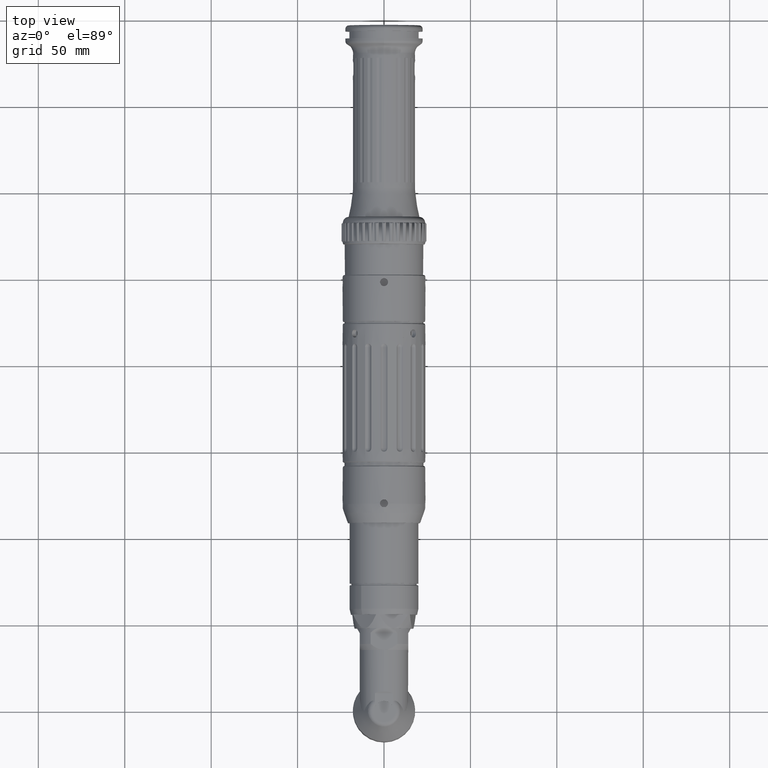
[diagram: clean part render]
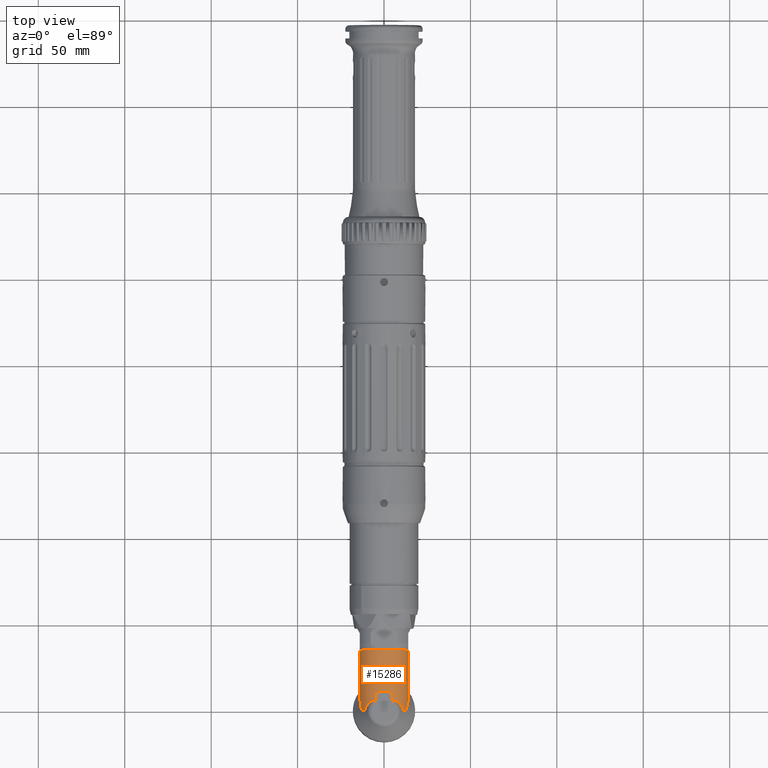
[diagram: same view with one face highlighted and labeled with its STEP entity id]
A machine part, top view. The second image highlights one B-rep face of the part: STEP entity #15286.
In plain terms, the highlighted cylindrical surface (bore or boss wall) has radius 14 mm, axis along (0, -1, 0).
Its self-contained STEP definition (entity closure, byte-faithful):
#117=ELLIPSE('',#16357,19.7989898732234,14.);
#400=B_SPLINE_CURVE_WITH_KNOTS('',3,(#24353,#24354,#24355,#24356,#24357,
#24358,#24359,#24360),.UNSPECIFIED.,.F.,.F.,(4,2,2,4),(0.996889077882617,
1.05251703469573,1.21449138699967,1.22417856193823),.UNSPECIFIED.);
#401=B_SPLINE_CURVE_WITH_KNOTS('',3,(#24364,#24365,#24366,#24367,#24368,
#24369),.UNSPECIFIED.,.F.,.F.,(4,2,4),(1.71924712445002,1.86126399063555,
2.07602834179498),.UNSPECIFIED.);
#402=B_SPLINE_CURVE_WITH_KNOTS('',3,(#24373,#24374,#24375,#24376,#24377,
#24378,#24379,#24380,#24381,#24382,#24383,#24384,#24385,#24386),
 .UNSPECIFIED.,.F.,.F.,(4,2,2,2,2,2,4),(3.40530504642907,3.50394886458541,
3.60259268274176,3.79988031905444,4.19445559167981,4.58903086430518,4.85221618798012),
 .UNSPECIFIED.);
#403=B_SPLINE_CURVE_WITH_KNOTS('',3,(#24390,#24391,#24392,#24393,#24394,
#24395,#24396,#24397,#24398,#24399),.UNSPECIFIED.,.F.,.F.,(4,2,2,2,4),(-0.705998900967671,
-0.444792625547526,-0.222396312773763,-0.111198156386882,0.),
 .UNSPECIFIED.);
#404=B_SPLINE_CURVE_WITH_KNOTS('',3,(#24403,#24404,#24405,#24406,#24407,
#24408,#24409,#24410,#24411,#24412),.UNSPECIFIED.,.F.,.F.,(4,2,2,2,4),(3.17390460403441,
3.28510276042129,3.39630091680817,3.61869722958194,3.87990350500208),
 .UNSPECIFIED.);
#405=B_SPLINE_CURVE_WITH_KNOTS('',3,(#24415,#24416,#24417,#24418,#24419,
#24420,#24421,#24422,#24423,#24424,#24425,#24426,#24427,#24428),
 .UNSPECIFIED.,.F.,.F.,(4,2,2,2,2,2,4),(1.95839390487804,2.22157922855296,
2.61615450117833,3.0107297738037,3.20801741011639,3.30666122827273,3.40530504642907),
 .UNSPECIFIED.);
#406=B_SPLINE_CURVE_WITH_KNOTS('',3,(#24431,#24432,#24433,#24434,#24435,
#24436,#24437,#24438,#24439,#24440,#24441,#24442,#24443,#24444,#24445,#24446),
 .UNSPECIFIED.,.F.,.F.,(4,2,2,2,2,2,2,4),(2.2217434660514,2.26915554022645,
2.35454252497188,2.42149488981413,2.48932579871356,2.58437917174115,2.72558526669357,
2.87905094980489),.UNSPECIFIED.);
#407=B_SPLINE_CURVE_WITH_KNOTS('',3,(#24449,#24450,#24451,#24452,#24453,
#24454,#24455,#24456,#24457,#24458,#24459,#24460,#24461,#24462,#24463,#24464),
 .UNSPECIFIED.,.F.,.F.,(4,2,2,2,2,2,2,4),(0.578152838762708,0.726975692022308,
0.879643700216198,0.976465362497118,1.04452032220142,1.10812630067811,1.18776566566929,
1.21275660730421),.UNSPECIFIED.);
#408=B_SPLINE_CURVE_WITH_KNOTS('',3,(#24529,#24530,#24531,#24532,#24533,
#24534,#24535,#24536,#24537,#24538,#24539,#24540,#24541,#24542,#24543,#24544,
#24545,#24546,#24547,#24548,#24549,#24550),.UNSPECIFIED.,.F.,.F.,(4,2,2,
2,2,2,2,2,2,2,4),(4.93128839962065,5.06425895778514,5.63356161291278,6.18799803344951,
6.46521624371787,6.74243445398623,7.0196526642546,7.29687087452296,7.85130729505968,
8.42060995018733,8.55358050835181),.UNSPECIFIED.);
#1057=FACE_BOUND('',#4183,.T.);
#1494=LINE('',#24467,#2361);
#1495=LINE('',#24469,#2362);
#2361=VECTOR('',#18747,10.);
#2362=VECTOR('',#18748,10.);
#3189=FACE_OUTER_BOUND('',#4182,.T.);
#4182=EDGE_LOOP('',(#10389,#10390,#10391,#10392));
#4183=EDGE_LOOP('',(#10393,#10394,#10395,#10396,#10397,#10398,#10399,#10400,
#10401,#10402,#10403,#10404,#10405,#10406));
#5319=CIRCLE('',#16344,14.);
#5320=CIRCLE('',#16346,14.);
#5321=CIRCLE('',#16354,14.);
#5322=CIRCLE('',#16359,14.);
#5323=CIRCLE('',#16360,14.);
#5324=CIRCLE('',#16361,14.);
#6435=VERTEX_POINT('',#24351);
#6436=VERTEX_POINT('',#24352);
#6437=VERTEX_POINT('',#24361);
#6438=VERTEX_POINT('',#24363);
#6439=VERTEX_POINT('',#24372);
#6440=VERTEX_POINT('',#24387);
#6441=VERTEX_POINT('',#24389);
#6442=VERTEX_POINT('',#24400);
#6443=VERTEX_POINT('',#24402);
#6444=VERTEX_POINT('',#24413);
#6445=VERTEX_POINT('',#24430);
#6446=VERTEX_POINT('',#24447);
#6447=VERTEX_POINT('',#24466);
#6448=VERTEX_POINT('',#24468);
#6450=VERTEX_POINT('',#24477);
#6451=VERTEX_POINT('',#24485);
#6452=VERTEX_POINT('',#24496);
#6453=VERTEX_POINT('',#24502);
#7942=EDGE_CURVE('',#6435,#6436,#400,.F.);
#7944=EDGE_CURVE('',#6437,#6438,#401,.F.);
#7946=EDGE_CURVE('',#6439,#6436,#402,.T.);
#7948=EDGE_CURVE('',#6441,#6440,#403,.T.);
#7950=EDGE_CURVE('',#6443,#6442,#404,.T.);
#7952=EDGE_CURVE('',#6437,#6444,#405,.T.);
#7953=EDGE_CURVE('',#6441,#6445,#406,.F.);
#7955=EDGE_CURVE('',#6446,#6442,#407,.F.);
#7956=EDGE_CURVE('',#6446,#6447,#1494,.T.);
#7957=EDGE_CURVE('',#6448,#6445,#1495,.T.);
#7969=EDGE_CURVE('',#6450,#6452,#5319,.T.);
#7971=EDGE_CURVE('',#6451,#6453,#5320,.T.);
#7978=EDGE_CURVE('',#6452,#6451,#5321,.T.);
#7979=EDGE_CURVE('',#6447,#6448,#117,.T.);
#7980=EDGE_CURVE('',#6453,#6450,#5322,.T.);
#7981=EDGE_CURVE('',#6439,#6440,#5323,.T.);
#7982=EDGE_CURVE('',#6435,#6438,#408,.T.);
#7983=EDGE_CURVE('',#6443,#6444,#5324,.T.);
#10389=ORIENTED_EDGE('',*,*,#7978,.T.);
#10390=ORIENTED_EDGE('',*,*,#7971,.T.);
#10391=ORIENTED_EDGE('',*,*,#7980,.T.);
#10392=ORIENTED_EDGE('',*,*,#7969,.T.);
#10393=ORIENTED_EDGE('',*,*,#7956,.T.);
#10394=ORIENTED_EDGE('',*,*,#7979,.T.);
#10395=ORIENTED_EDGE('',*,*,#7957,.T.);
#10396=ORIENTED_EDGE('',*,*,#7953,.F.);
#10397=ORIENTED_EDGE('',*,*,#7948,.T.);
#10398=ORIENTED_EDGE('',*,*,#7981,.F.);
#10399=ORIENTED_EDGE('',*,*,#7946,.T.);
#10400=ORIENTED_EDGE('',*,*,#7942,.F.);
#10401=ORIENTED_EDGE('',*,*,#7982,.T.);
#10402=ORIENTED_EDGE('',*,*,#7944,.F.);
#10403=ORIENTED_EDGE('',*,*,#7952,.T.);
#10404=ORIENTED_EDGE('',*,*,#7983,.F.);
#10405=ORIENTED_EDGE('',*,*,#7950,.T.);
#10406=ORIENTED_EDGE('',*,*,#7955,.F.);
#13943=CYLINDRICAL_SURFACE('',#16358,14.);
#15286=ADVANCED_FACE('',(#3189,#1057),#13943,.T.);
#16344=AXIS2_PLACEMENT_3D('',#24500,#18768,#18769);
#16346=AXIS2_PLACEMENT_3D('',#24506,#18772,#18773);
#16354=AXIS2_PLACEMENT_3D('',#24522,#18790,#18791);
#16357=AXIS2_PLACEMENT_3D('',#24525,#18796,#18797);
#16358=AXIS2_PLACEMENT_3D('',#24526,#18798,#18799);
#16359=AXIS2_PLACEMENT_3D('',#24527,#18800,#18801);
#16360=AXIS2_PLACEMENT_3D('',#24528,#18802,#18803);
#16361=AXIS2_PLACEMENT_3D('',#24551,#18804,#18805);
#18747=DIRECTION('',(-8.23378977134237E-16,1.,-8.72626708289615E-15));
#18748=DIRECTION('',(8.23378977134237E-16,-1.,8.72626708289615E-15));
#18768=DIRECTION('center_axis',(8.23378977134237E-16,-1.,8.72626708289615E-15));
#18769=DIRECTION('ref_axis',(-1.16743491188149E-16,8.72626708289615E-15,
1.));
#18772=DIRECTION('center_axis',(8.23378977134237E-16,-1.,8.72626708289615E-15));
#18773=DIRECTION('ref_axis',(-1.16743491188149E-16,8.72626708289615E-15,
1.));
#18790=DIRECTION('center_axis',(8.23378977134237E-16,-1.,8.72626708289615E-15));
#18791=DIRECTION('ref_axis',(-1.16743491188149E-16,8.72626708289615E-15,
1.));
#18796=DIRECTION('center_axis',(-4.99666743939529E-16,0.707106781186541,
-0.707106781186555));
#18797=DIRECTION('ref_axis',(-6.64766972496595E-16,0.707106781186554,0.707106781186541));
#18798=DIRECTION('center_axis',(8.23378977134237E-16,-1.,8.72626708289615E-15));
#18799=DIRECTION('ref_axis',(-1.16743491188149E-16,8.72626708289614E-15,
1.));
#18800=DIRECTION('center_axis',(8.23378977134237E-16,-1.,8.72626708289615E-15));
#18801=DIRECTION('ref_axis',(-1.16743491188149E-16,8.72626708289615E-15,
1.));
#18802=DIRECTION('center_axis',(8.23378977134237E-16,-1.,8.72626708289615E-15));
#18803=DIRECTION('ref_axis',(-1.16743491188149E-16,8.72626708289614E-15,
1.));
#18804=DIRECTION('center_axis',(8.23378977134237E-16,-1.,8.72626708289615E-15));
#18805=DIRECTION('ref_axis',(-1.16743491188149E-16,8.72626708289614E-15,
1.));
#24351=CARTESIAN_POINT('',(13.3366646313381,12.0885638729832,-4.25833024919532));
#24352=CARTESIAN_POINT('',(13.7255824734833,11.0136584341453,-2.75833024919308));
#24353=CARTESIAN_POINT('Ctrl Pts',(13.7255824734829,11.0136584341473,-2.75833024919065));
#24354=CARTESIAN_POINT('Ctrl Pts',(13.702797771956,11.1466460452976,-2.87170800735919));
#24355=CARTESIAN_POINT('Ctrl Pts',(13.6778719090338,11.2676775815647,-2.98842704909826));
#24356=CARTESIAN_POINT('Ctrl Pts',(13.5719761066393,11.696606998628,-3.45363411773));
#24357=CARTESIAN_POINT('Ctrl Pts',(13.4733110495007,11.9240598244514,-3.82348986776637));
#24358=CARTESIAN_POINT('Ctrl Pts',(13.3507409508213,12.0726545272339,-4.2140538296464));
#24359=CARTESIAN_POINT('Ctrl Pts',(13.3437430325756,12.0807546522666,-4.23616140415186));
#24360=CARTESIAN_POINT('Ctrl Pts',(13.3366646313376,12.0885638729838,-4.25833024919497));
#24361=CARTESIAN_POINT('',(-13.7255824734844,11.0136584341453,-2.75833024919309));
#24363=CARTESIAN_POINT('',(-13.3366646313393,12.0885638729832,-4.25833024919532));
#24364=CARTESIAN_POINT('Ctrl Pts',(-13.3366646313389,12.0885638729836,-4.25833024919446));
#24365=CARTESIAN_POINT('Ctrl Pts',(-13.4093995411693,12.0083193452138,-4.03053178298074));
#24366=CARTESIAN_POINT('Ctrl Pts',(-13.473161911542,11.8978450110758,-3.81053600306765));
#24367=CARTESIAN_POINT('Ctrl Pts',(-13.6122332941475,11.5596451845156,-3.28830258477332));
#24368=CARTESIAN_POINT('Ctrl Pts',(-13.6758282773905,11.3040590643843,-3.00590949467243));
#24369=CARTESIAN_POINT('Ctrl Pts',(-13.7255824734841,11.0136584341473,-2.75833024919067));
#24372=CARTESIAN_POINT('',(12.9873605377563,-5.32907051820075E-14,5.2276635567261));
#24373=CARTESIAN_POINT('Ctrl Pts',(12.9873605377563,-7.09154956979319E-14,
5.22766355672612));
#24374=CARTESIAN_POINT('Ctrl Pts',(12.9873605377563,0.328812727187753,5.22766355672612));
#24375=CARTESIAN_POINT('Ctrl Pts',(13.0149731918321,0.611384943635933,5.15949552771321));
#24376=CARTESIAN_POINT('Ctrl Pts',(13.087060029951,1.1387557790102,4.97380905121963));
#24377=CARTESIAN_POINT('Ctrl Pts',(13.1320440476462,1.38296120990077,4.85480759324498));
#24378=CARTESIAN_POINT('Ctrl Pts',(13.2739690470317,2.10169545294089,4.45873115142986));
#24379=CARTESIAN_POINT('Ctrl Pts',(13.3768283902347,2.55749382319674,4.14550432945748));
#24380=CARTESIAN_POINT('Ctrl Pts',(13.6648516191548,3.96173663875803,3.12582885194657));
#24381=CARTESIAN_POINT('Ctrl Pts',(13.8262356476904,4.92235219835807,2.34823549621331));
#24382=CARTESIAN_POINT('Ctrl Pts',(14.0062417895297,6.91560433181134,0.71006463728803));
#24383=CARTESIAN_POINT('Ctrl Pts',(14.0262380501167,7.9447906766346,-0.154835893213145));
#24384=CARTESIAN_POINT('Ctrl Pts',(13.9199998022949,9.65734875289009,-1.60356852657758));
#24385=CARTESIAN_POINT('Ctrl Pts',(13.8407266260185,10.3415958326058,-2.18536747128213));
#24386=CARTESIAN_POINT('Ctrl Pts',(13.7255824734829,11.0136584341475,-2.75833024919075));
#24387=CARTESIAN_POINT('',(11.0209697114403,-5.32907051820075E-14,8.63355237544274));
#24389=CARTESIAN_POINT('',(7.98435971133513,4.89616501604418,11.5000000000005));
#24390=CARTESIAN_POINT('Ctrl Pts',(7.98435971133514,4.8961650160442,11.5000000000005));
#24391=CARTESIAN_POINT('Ctrl Pts',(8.58109122359643,4.38062505155532,11.0856939960889));
#24392=CARTESIAN_POINT('Ctrl Pts',(9.1183380641205,3.81911233981466,10.6416979802054));
#24393=CARTESIAN_POINT('Ctrl Pts',(9.96174800663553,2.75159290856836,9.85120130894817));
#24394=CARTESIAN_POINT('Ctrl Pts',(10.2865087442615,2.26169048963497,9.50477021551351));
#24395=CARTESIAN_POINT('Ctrl Pts',(10.6726741160037,1.49356799530517,9.06269383630864));
#24396=CARTESIAN_POINT('Ctrl Pts',(10.7835015732708,1.23470723858199,8.92943600330219));
#24397=CARTESIAN_POINT('Ctrl Pts',(10.9560612316614,0.672009539808123,8.71684998142055));
#24398=CARTESIAN_POINT('Ctrl Pts',(11.0209697114403,0.370660521289548,8.6335523754427));
#24399=CARTESIAN_POINT('Ctrl Pts',(11.0209697114403,-5.32907051820075E-14,
8.63355237544271));
#24400=CARTESIAN_POINT('',(-7.98435971133624,4.8961650160442,11.5000000000005));
#24402=CARTESIAN_POINT('',(-11.0209697114414,-5.32907051820075E-14,8.63355237544273));
#24403=CARTESIAN_POINT('Ctrl Pts',(-11.0209697114414,-5.32907051820073E-14,
8.63355237544272));
#24404=CARTESIAN_POINT('Ctrl Pts',(-11.0209697114414,0.370660521289548,
8.63355237544272));
#24405=CARTESIAN_POINT('Ctrl Pts',(-10.9560612316625,0.67200953980814,8.71684998142053));
#24406=CARTESIAN_POINT('Ctrl Pts',(-10.783501573272,1.23470723858199,8.92943600330218));
#24407=CARTESIAN_POINT('Ctrl Pts',(-10.6726741160048,1.49356799530517,9.06269383630863));
#24408=CARTESIAN_POINT('Ctrl Pts',(-10.2865087442627,2.26169048963497,9.50477021551351));
#24409=CARTESIAN_POINT('Ctrl Pts',(-9.96174800663665,2.75159290856836,9.85120130894817));
#24410=CARTESIAN_POINT('Ctrl Pts',(-9.11833806412162,3.81911233981466,10.6416979802054));
#24411=CARTESIAN_POINT('Ctrl Pts',(-8.58109122359755,4.38062505155532,11.0856939960889));
#24412=CARTESIAN_POINT('Ctrl Pts',(-7.98435971133624,4.89616501604421,11.5000000000005));
#24413=CARTESIAN_POINT('',(-12.9873605377574,-7.105427357601E-14,5.2276635567261));
#24415=CARTESIAN_POINT('Ctrl Pts',(-13.7255824734841,11.0136584341473,-2.75833024919066));
#24416=CARTESIAN_POINT('Ctrl Pts',(-13.8407266260196,10.3415958326057,-2.18536747128209));
#24417=CARTESIAN_POINT('Ctrl Pts',(-13.919999802296,9.65734875289003,-1.60356852657755));
#24418=CARTESIAN_POINT('Ctrl Pts',(-14.0262380501179,7.94479067663458,-0.154835893213145));
#24419=CARTESIAN_POINT('Ctrl Pts',(-14.0062417895309,6.91560433181131,0.710064637288038));
#24420=CARTESIAN_POINT('Ctrl Pts',(-13.8262356476916,4.92235219835806,2.34823549621331));
#24421=CARTESIAN_POINT('Ctrl Pts',(-13.664851619156,3.96173663875802,3.12582885194656));
#24422=CARTESIAN_POINT('Ctrl Pts',(-13.3768283902358,2.55749382319671,4.14550432945747));
#24423=CARTESIAN_POINT('Ctrl Pts',(-13.2739690470329,2.10169545294086,4.45873115142985));
#24424=CARTESIAN_POINT('Ctrl Pts',(-13.1320440476473,1.38296120990077,4.85480759324497));
#24425=CARTESIAN_POINT('Ctrl Pts',(-13.0870600299522,1.13875577901018,4.97380905121961));
#24426=CARTESIAN_POINT('Ctrl Pts',(-13.0149731918333,0.611384943635915,
5.15949552771319));
#24427=CARTESIAN_POINT('Ctrl Pts',(-12.9873605377574,0.328812727187735,
5.22766355672611));
#24428=CARTESIAN_POINT('Ctrl Pts',(-12.9873605377574,-7.08808012284123E-14,
5.22766355672611));
#24430=CARTESIAN_POINT('',(5.19615242270609,4.33648893361079,13.0000000000005));
#24431=CARTESIAN_POINT('Ctrl Pts',(5.19615242270609,4.33648893361074,13.0000000000005));
#24432=CARTESIAN_POINT('Ctrl Pts',(5.19615242270609,4.43139953927028,13.0000000000005));
#24433=CARTESIAN_POINT('Ctrl Pts',(5.20077701635673,4.52230065771713,12.9981552615446));
#24434=CARTESIAN_POINT('Ctrl Pts',(5.22946534510295,4.76512784149859,12.9866503448982));
#24435=CARTESIAN_POINT('Ctrl Pts',(5.26746900273672,4.9188107182095,12.9714931483061));
#24436=CARTESIAN_POINT('Ctrl Pts',(5.39377026703898,5.1660888933988,12.9193981180506));
#24437=CARTESIAN_POINT('Ctrl Pts',(5.46626474314701,5.25931110976835,12.8891240031427));
#24438=CARTESIAN_POINT('Ctrl Pts',(5.6470078585045,5.41473664223417,12.8109766528634));
#24439=CARTESIAN_POINT('Ctrl Pts',(5.75054555660815,5.47200907172764,12.7650194913633));
#24440=CARTESIAN_POINT('Ctrl Pts',(6.01312654462958,5.56832029487667,12.6440016156245));
#24441=CARTESIAN_POINT('Ctrl Pts',(6.17717749435074,5.59077689749344,12.5648182261161));
#24442=CARTESIAN_POINT('Ctrl Pts',(6.5747528393285,5.59038102274371,12.3629947358524));
#24443=CARTESIAN_POINT('Ctrl Pts',(6.83700975575648,5.54025421226292,12.2210153467786));
#24444=CARTESIAN_POINT('Ctrl Pts',(7.39962953581847,5.3210361536436,11.8895391838035));
#24445=CARTESIAN_POINT('Ctrl Pts',(7.69856815583266,5.14307164883895,11.6984228331826));
#24446=CARTESIAN_POINT('Ctrl Pts',(7.98435971133512,4.89616501604419,11.5000000000005));
#24447=CARTESIAN_POINT('',(-5.19615242270722,4.33648893361079,13.0000000000005));
#24449=CARTESIAN_POINT('Ctrl Pts',(-7.98435971133615,4.89616501604426,11.5000000000006));
#24450=CARTESIAN_POINT('Ctrl Pts',(-7.70098610626876,5.14098268578641,11.6967440691793));
#24451=CARTESIAN_POINT('Ctrl Pts',(-7.40316424611944,5.31926992190775,11.8873657390774));
#24452=CARTESIAN_POINT('Ctrl Pts',(-6.80799176425742,5.55195606877897,12.2382041503384));
#24453=CARTESIAN_POINT('Ctrl Pts',(-6.51360982831856,5.60190652279106,12.3959126946678));
#24454=CARTESIAN_POINT('Ctrl Pts',(-6.08539027061572,5.57999246770462,12.6096201488373));
#24455=CARTESIAN_POINT('Ctrl Pts',(-5.91510884655462,5.54518521277803,12.6901723584083));
#24456=CARTESIAN_POINT('Ctrl Pts',(-5.65085614056697,5.41661578299379,12.8094553397007));
#24457=CARTESIAN_POINT('Ctrl Pts',(-5.5512655447698,5.34428184933864,12.8526928655067));
#24458=CARTESIAN_POINT('Ctrl Pts',(-5.38937137780146,5.15990397247004,12.921373539353));
#24459=CARTESIAN_POINT('Ctrl Pts',(-5.33026924243526,5.05672742939916,12.9456690204508));
#24460=CARTESIAN_POINT('Ctrl Pts',(-5.23433374807485,4.79762678346111,12.9848014369672));
#24461=CARTESIAN_POINT('Ctrl Pts',(-5.20932278304942,4.6412183933173,12.99473163858));
#24462=CARTESIAN_POINT('Ctrl Pts',(-5.19748273700482,4.43722495996085,12.9994685459136));
#24463=CARTESIAN_POINT('Ctrl Pts',(-5.19615242270722,4.38736772230278,13.0000000000005));
#24464=CARTESIAN_POINT('Ctrl Pts',(-5.19615242270722,4.33648893361078,13.0000000000005));
#24466=CARTESIAN_POINT('',(-5.19615242270723,9.99999999999998,13.0000000000005));
#24467=CARTESIAN_POINT('',(-5.19615242270724,17.5,13.0000000000004));
#24468=CARTESIAN_POINT('',(5.1961524227061,9.99999999999998,13.0000000000005));
#24469=CARTESIAN_POINT('',(5.19615242270609,17.5,13.0000000000004));
#24477=CARTESIAN_POINT('',(-5.85130223477191E-13,34.9999999999997,-13.9999999999998));
#24485=CARTESIAN_POINT('',(-5.86684535711653E-13,35.,14.0000000000003));
#24496=CARTESIAN_POINT('',(13.9999999999994,34.9999999999999,2.47132937121499E-13));
#24500=CARTESIAN_POINT('Origin',(-5.85907379594422E-13,34.9999999999999,
2.45498528244865E-13));
#24502=CARTESIAN_POINT('',(-14.0000000000006,34.9999999999999,2.43864119368231E-13));
#24506=CARTESIAN_POINT('Origin',(-5.85907379594422E-13,34.9999999999999,
2.45498528244865E-13));
#24522=CARTESIAN_POINT('Origin',(-5.85907379594422E-13,34.9999999999999,
2.45498528244865E-13));
#24525=CARTESIAN_POINT('Origin',(-5.54618978463321E-13,-3.00000000000015,
5.77096677394919E-13));
#24526=CARTESIAN_POINT('Origin',(-5.71498247494573E-13,17.4999999999999,
3.98208202195548E-13));
#24527=CARTESIAN_POINT('Origin',(-5.85907379594422E-13,34.9999999999999,
2.45498528244865E-13));
#24528=CARTESIAN_POINT('Origin',(-5.57089115394723E-13,-1.24344978758018E-13,
5.5091787614623E-13));
#24529=CARTESIAN_POINT('Ctrl Pts',(13.3366646313376,12.0885638729838,-4.25833024919496));
#24530=CARTESIAN_POINT('Ctrl Pts',(13.2046299622494,12.2342306469565,-4.67184963315371));
#24531=CARTESIAN_POINT('Ctrl Pts',(13.0539537805336,12.3956523004979,-5.07730220581417));
#24532=CARTESIAN_POINT('Ctrl Pts',(12.1666228923029,13.3054362065818,-7.16653157660415));
#24533=CARTESIAN_POINT('Ctrl Pts',(11.1159465238155,14.2322574029497,-8.68304334940686));
#24534=CARTESIAN_POINT('Ctrl Pts',(8.71480862311658,15.8134177746876,-11.0841812501058));
#24535=CARTESIAN_POINT('Ctrl Pts',(7.19590806548083,16.5970895131762,-12.1529962605557));
#24536=CARTESIAN_POINT('Ctrl Pts',(4.62230793442861,17.4196840547257,-13.2477688206595));
#24537=CARTESIAN_POINT('Ctrl Pts',(3.71567113319576,17.6371662928406,-13.5308520438879));
#24538=CARTESIAN_POINT('Ctrl Pts',(1.86657660860301,17.9274018916479,-13.9070507576953));
#24539=CARTESIAN_POINT('Ctrl Pts',(0.924060700893975,17.9999999999997,-13.9999999999996));
#24540=CARTESIAN_POINT('Ctrl Pts',(-0.924060700895112,17.9999999999997,
-13.9999999999996));
#24541=CARTESIAN_POINT('Ctrl Pts',(-1.86657660860414,17.9274018916479,-13.9070507576953));
#24542=CARTESIAN_POINT('Ctrl Pts',(-3.71567113319691,17.6371662928406,-13.5308520438879));
#24543=CARTESIAN_POINT('Ctrl Pts',(-4.62230793442975,17.4196840547257,-13.2477688206595));
#24544=CARTESIAN_POINT('Ctrl Pts',(-7.19590806548197,16.5970895131762,-12.1529962605557));
#24545=CARTESIAN_POINT('Ctrl Pts',(-8.71480862311771,15.8134177746876,-11.0841812501058));
#24546=CARTESIAN_POINT('Ctrl Pts',(-11.1159465238166,14.2322574029497,-8.68304334940687));
#24547=CARTESIAN_POINT('Ctrl Pts',(-12.1666228923041,13.3054362065818,-7.16653157660416));
#24548=CARTESIAN_POINT('Ctrl Pts',(-13.0539537805347,12.3956523004979,-5.07730220581418));
#24549=CARTESIAN_POINT('Ctrl Pts',(-13.2046299622505,12.2342306469564,-4.67184963315372));
#24550=CARTESIAN_POINT('Ctrl Pts',(-13.3366646313388,12.0885638729838,-4.25833024919497));
#24551=CARTESIAN_POINT('Origin',(-5.57089115394723E-13,-1.24344978758018E-13,
5.5091787614623E-13));